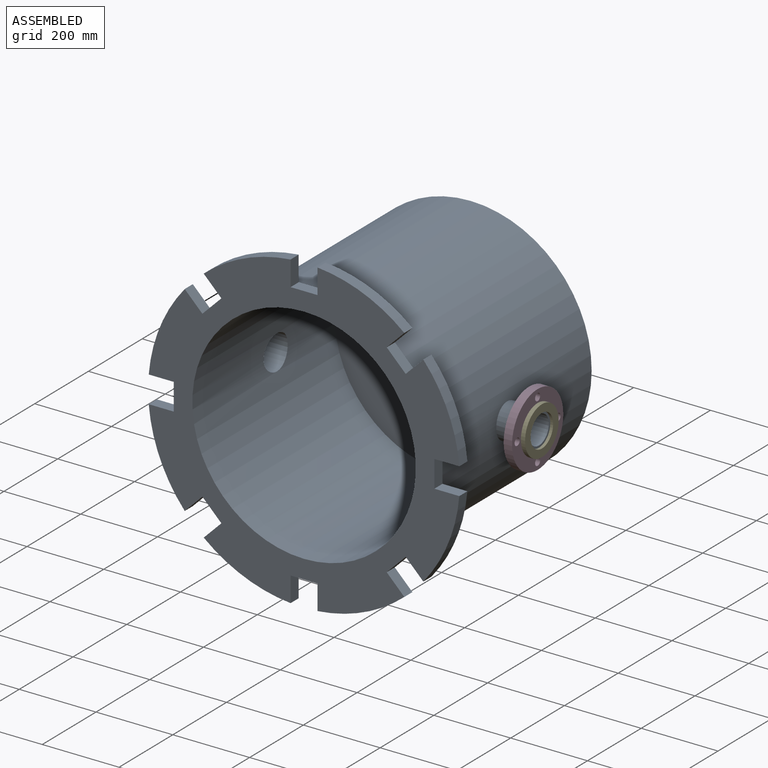
[diagram: assembled view]
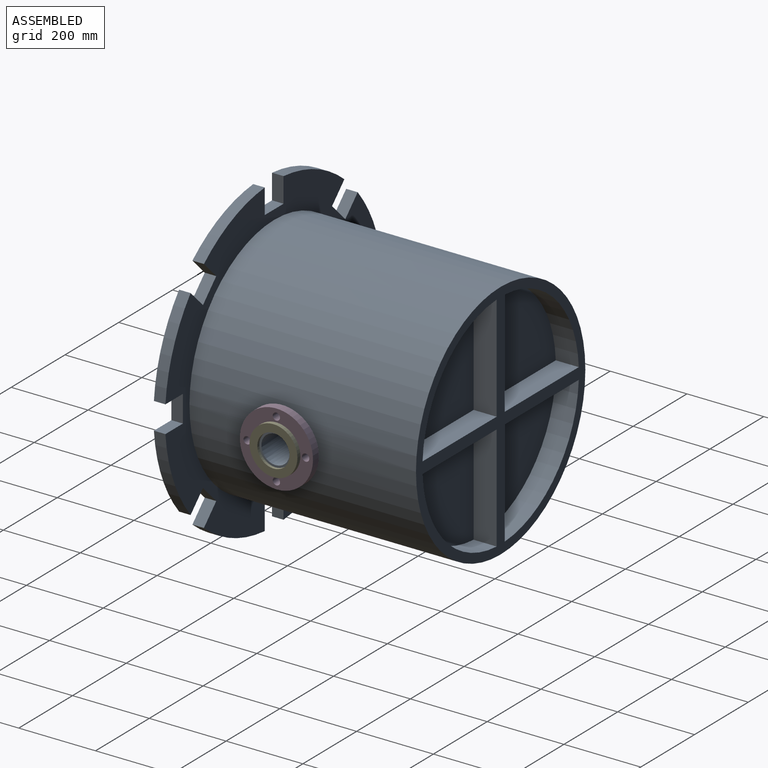
[diagram: assembled view, second angle]
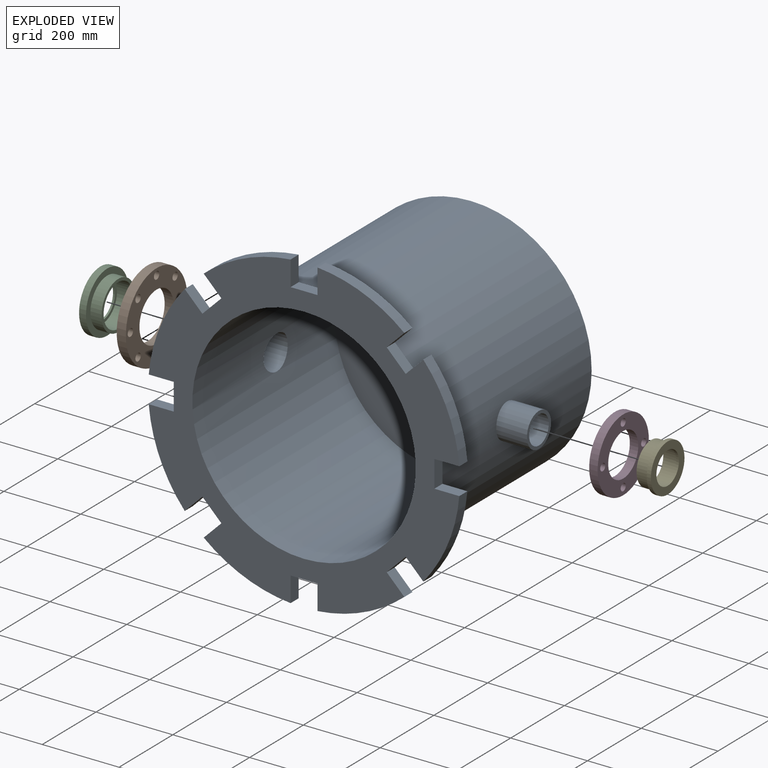
[diagram: exploded view]
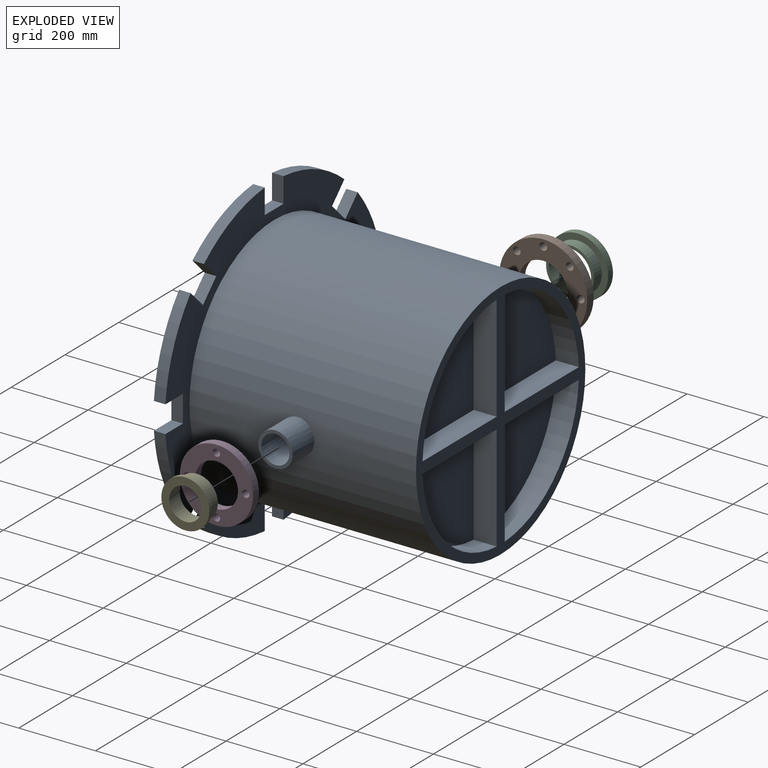
[diagram: exploded view, second angle]
ASSEMBLY  parts=5 mates=8
PART A: 60 faces, bbox 819.5x620x809 mm
  f0: cylinder r=291mm len=582mm, axis (0,-1,0), area 958417.8mm2, adj f9,f13,f56,f59
  f1: cylinder r=315mm len=630mm, axis (0,-1,0), area 1151808mm2, adj f10,f11,f55,f58
  f2: cylinder r=406mm len=226.27mm, axis (0,1,0), area 7463.5mm2, adj f9,f10,f48,f51
  f3: cylinder r=406mm len=226.27mm, axis (0,1,0), area 7463.5mm2, adj f9,f10,f45,f49
  f4: cylinder r=406mm len=226.27mm, axis (0,1,0), area 7463.5mm2, adj f9,f10,f42,f46
  f5: cylinder r=406mm len=226.27mm, axis (0,1,0), area 7463.5mm2, adj f9,f10,f39,f43
  f6: cylinder r=406mm len=226.27mm, axis (0,1,0), area 7463.5mm2, adj f9,f10,f36,f40
  f7: cylinder r=406mm len=226.27mm, axis (0,1,0), area 7463.5mm2, adj f9,f10,f33,f37
  f8: cylinder r=406mm len=226.27mm, axis (0,1,0), area 7463.5mm2, adj f9,f10,f30,f34
  f9: plane 808.98x808.98mm, normal (0,-1,0), area 214849.9mm2, adj f0,f2,f3,f4,f5,f6,f7,f8
  f10: plane 808.98x808.98mm, normal (0,1,0), area 169158.6mm2, adj f1,f2,f3,f4,f5,f6,f7,f8
  f11: plane 630x630mm, normal (0,1,0), area 79695.9mm2, adj f1,f14,f15,f16,f18,f19,f20,f22
  f12: cylinder r=406mm len=226.27mm, axis (0,1,0), area 7463.5mm2, adj f9,f10,f31,f53
  f13: plane 582x582mm, normal (0,-1,0), area 266033.2mm2, adj f0
  f14: plane 275.61x60mm, normal (1,0,0), area 16536.8mm2, adj f11,f15,f16,f17
  f15: cylinder r=291mm len=275.61mm, axis (0,1,0), area 25625.3mm2, adj f11,f14,f16,f17
  f16: plane 275.61x60mm, normal (0,0,1), area 16536.8mm2, adj f11,f14,f15,f17
  f17: plane 275.61x275.61mm, normal (0,1,0), area 58007.2mm2, adj f14,f15,f16
  f18: cylinder r=291mm len=275.61mm, axis (0,1,0), area 25625.3mm2, adj f11,f19,f20,f21
  f19: plane 275.61x60mm, normal (-1,0,0), area 16536.8mm2, adj f11,f18,f20,f21
  f20: plane 275.61x60mm, normal (0,0,1), area 16536.8mm2, adj f11,f18,f19,f21
  f21: plane 275.61x275.61mm, normal (0,1,0), area 58007.2mm2, adj f18,f19,f20
  f22: plane 275.61x60mm, normal (-1,0,0), area 16536.8mm2, adj f11,f23,f24,f25
  f23: cylinder r=291mm len=275.61mm, axis (0,1,0), area 25625.3mm2, adj f11,f22,f24,f25
  f24: plane 275.61x60mm, normal (0,0,-1), area 16536.8mm2, adj f11,f22,f23,f25
  f25: plane 275.61x275.61mm, normal (0,1,0), area 58007.2mm2, adj f22,f23,f24
  f26: plane 275.61x60mm, normal (0,0,-1), area 16536.8mm2, adj f11,f27,f28,f29
  f27: cylinder r=291mm len=275.61mm, axis (0,1,0), area 25625.3mm2, adj f11,f26,f28,f29
  f28: plane 275.61x60mm, normal (1,0,0), area 16536.8mm2, adj f11,f26,f27,f29
  f29: plane 275.61x275.61mm, normal (0,1,0), area 58007.2mm2, adj f26,f27,f28
  f30: plane 45.96x45.96mm, normal (-0.71,0,0.71), area 1950mm2, adj f8,f9,f10,f32
  f31: plane 45.96x45.96mm, normal (0.71,0,-0.71), area 1950mm2, adj f9,f10,f12,f32
  f32: plane 49.5x49.5mm, normal (0.71,0,0.71), area 2100mm2, adj f9,f10,f30,f31
  f33: plane 65x30mm, normal (0,0,1), area 1950mm2, adj f7,f9,f10,f35
  f34: plane 65x30mm, normal (0,0,-1), area 1950mm2, adj f8,f9,f10,f35
  f35: plane 70x30mm, normal (1,0,0), area 2100mm2, adj f9,f10,f33,f34
  f36: plane 45.96x45.96mm, normal (0.71,0,0.71), area 1950mm2, adj f6,f9,f10,f38
  f37: plane 45.96x45.96mm, normal (-0.71,0,-0.71), area 1950mm2, adj f7,f9,f10,f38
  f38: plane 49.5x49.5mm, normal (0.71,0,-0.71), area 2100mm2, adj f9,f10,f36,f37
  f39: plane 65x30mm, normal (1,0,0), area 1950mm2, adj f5,f9,f10,f41
  f40: plane 65x30mm, normal (-1,0,0), area 1950mm2, adj f6,f9,f10,f41
  f41: plane 70x30mm, normal (0,0,-1), area 2100mm2, adj f9,f10,f39,f40
  f42: plane 45.96x45.96mm, normal (0.71,0,-0.71), area 1950mm2, adj f4,f9,f10,f44
  f43: plane 45.96x45.96mm, normal (-0.71,0,0.71), area 1950mm2, adj f5,f9,f10,f44
  f44: plane 49.5x49.5mm, normal (-0.71,0,-0.71), area 2100mm2, adj f9,f10,f42,f43
  f45: plane 65x30mm, normal (0,0,-1), area 1950mm2, adj f3,f9,f10,f47
  f46: plane 65x30mm, normal (0,0,1), area 1950mm2, adj f4,f9,f10,f47
  f47: plane 70x30mm, normal (-1,0,0), area 2100mm2, adj f9,f10,f45,f46
  f48: plane 45.96x45.96mm, normal (-0.71,0,-0.71), area 1950mm2, adj f2,f9,f10,f50
  f49: plane 45.96x45.96mm, normal (0.71,0,0.71), area 1950mm2, adj f3,f9,f10,f50
  f50: plane 49.5x49.5mm, normal (-0.71,0,0.71), area 2100mm2, adj f9,f10,f48,f49
  f51: plane 65x30mm, normal (1,0,0), area 1950mm2, adj f2,f9,f10,f52
  f52: plane 70x30mm, normal (0,0,1), area 2100mm2, adj f9,f10,f51,f53
  f53: plane 65x30mm, normal (-1,0,0), area 1950mm2, adj f9,f10,f12,f52
  f54: plane 90x90mm, normal (1,0,0), area 2107.3mm2, adj f55,f56
  f55: cylinder r=45mm len=90mm, axis (-1,0,0), area 23076.4mm2, adj f1,f54
  f56: cylinder r=36.8mm len=106.34mm, axis (-1,0,0), area 24317.3mm2, adj f0,f54
  f57: plane 110x110mm, normal (-1,0,0), area 3141.6mm2, adj f58,f59
  f58: cylinder r=55mm len=110mm, axis (1,0,0), area 35391.9mm2, adj f1,f57
  f59: cylinder r=45mm len=127.5mm, axis (1,0,0), area 35554.5mm2, adj f0,f57
PART B: 12 faces, bbox 23.9x229x229 mm
  f0: cylinder r=64mm len=128mm, axis (-1,0,0), area 9610.8mm2, adj f10,f11
  f1: cylinder r=10mm len=23.9mm, axis (-1,0,0), area 1501.7mm2, adj f10,f11
  f2: cylinder r=10mm len=23.9mm, axis (-1,0,0), area 1501.7mm2, adj f10,f11
  f3: cylinder r=10mm len=23.9mm, axis (-1,0,0), area 1501.7mm2, adj f10,f11
  f4: cylinder r=10mm len=23.9mm, axis (-1,0,0), area 1501.7mm2, adj f10,f11
  f5: cylinder r=10mm len=23.9mm, axis (-1,0,0), area 1501.7mm2, adj f10,f11
  f6: cylinder r=10mm len=23.9mm, axis (-1,0,0), area 1501.7mm2, adj f10,f11
  f7: cylinder r=10mm len=23.9mm, axis (-1,0,0), area 1501.7mm2, adj f10,f11
  f8: cylinder r=10mm len=23.9mm, axis (-1,0,0), area 1501.7mm2, adj f10,f11
  f9: cylinder r=114.5mm len=229mm, axis (-1,0,0), area 17194.3mm2, adj f10,f11
  f10: plane 229x229mm, normal (1,0,0), area 25805.8mm2, adj f0,f1,f2,f3,f4,f5,f6,f7
  f11: plane 229x229mm, normal (-1,0,0), area 25805.8mm2, adj f0,f1,f2,f3,f4,f5,f6,f7
PART C: 8 faces, bbox 47x158x158 mm
  f0: cylinder r=47.5mm len=95mm, axis (1,0,0), area 1492.3mm2, adj f2,f6
  f1: cylinder r=79mm len=158mm, axis (-1,0,0), area 8934.7mm2, adj f2,f3
  f2: plane 158x158mm, normal (1,0,0), area 12518.5mm2, adj f0,f1
  f3: plane 158x158mm, normal (-1,0,0), area 7334.8mm2, adj f1,f4
  f4: cylinder r=62.5mm len=125mm, axis (1,0,0), area 11388.3mm2, adj f3,f5
  f5: plane 125x125mm, normal (-1,0,0), area 2768.5mm2, adj f4,f7
  f6: plane 110x110mm, normal (-1,0,0), area 2415.1mm2, adj f0,f7
  f7: cylinder r=55mm len=110mm, axis (-1,0,0), area 14514.2mm2, adj f5,f6
PART D: 8 faces, bbox 22x190.5x190.5 mm
  f0: cylinder r=56mm len=112mm, axis (-1,0,0), area 7740.9mm2, adj f6,f7
  f1: cylinder r=9.53mm len=22mm, axis (-1,0,0), area 1316.6mm2, adj f6,f7
  f2: cylinder r=9.53mm len=22mm, axis (-1,0,0), area 1316.6mm2, adj f6,f7
  f3: cylinder r=9.53mm len=22mm, axis (-1,0,0), area 1316.6mm2, adj f6,f7
  f4: cylinder r=9.53mm len=22mm, axis (-1,0,0), area 1316.6mm2, adj f6,f7
  f5: cylinder r=95.25mm len=190.5mm, axis (-1,0,0), area 13166.4mm2, adj f6,f7
  f6: plane 190.5x190.5mm, normal (1,0,0), area 17510.2mm2, adj f0,f1,f2,f3,f4,f5
  f7: plane 190.5x190.5mm, normal (-1,0,0), area 17510.2mm2, adj f0,f1,f2,f3,f4,f5
PART E: 8 faces, bbox 43x125x125 mm
  f0: cylinder r=62.5mm len=125mm, axis (-1,0,0), area 4319.7mm2, adj f1,f2
  f1: plane 125x125mm, normal (1,0,0), area 6730.1mm2, adj f0,f7
  f2: plane 125x125mm, normal (-1,0,0), area 2940.5mm2, adj f0,f3
  f3: cylinder r=54.5mm len=109mm, axis (1,0,0), area 10957.9mm2, adj f2,f4
  f4: plane 109x109mm, normal (-1,0,0), area 2969.6mm2, adj f3,f5
  f5: cylinder r=45mm len=90mm, axis (-1,0,0), area 10037.4mm2, adj f4,f6
  f6: plane 90x90mm, normal (-1,0,0), area 820mm2, adj f5,f7
  f7: cylinder r=42mm len=84mm, axis (1,0,0), area 1979.2mm2, adj f1,f6
PLACE A t=(-116.01,-116.08,98.48)mm fixed
PLACE B rot(axis=(1,0,0),0deg) t=(-518.01,163.92,98.48)mm
PLACE C rot(axis=(0,1,0),180deg) t=(-518.01,163.92,98.48)mm
PLACE D t=(253.49,163.92,98.48)mm
PLACE E t=(275.49,163.92,98.48)mm
MATE cylindrical C.f7 <-> A.f58  axis (1,0,0) through (-489.01,163.92,98.48)mm
MATE cylindrical E.f5 <-> A.f55  axis (-1,0,0) through (278.99,163.92,98.48)mm
MATE cylindrical B.f0 <-> C.f4  axis (-1,0,0) through (-518.01,163.92,98.48)mm
MATE fastened B.f9 <-> C.f7  axis (-1,0,0) through (-518.01,163.92,98.48)mm
MATE fastened E.f0 <-> A.f55  axis (-1,0,0) through (278.99,163.92,98.48)mm
MATE fastened E.f0 <-> D.f5  axis (-1,0,0) through (275.49,163.92,98.48)mm
MATE fastened C.f7 <-> A.f58  axis (1,0,0) through (-531.01,163.92,98.48)mm
MATE cylindrical D.f0 <-> E.f3  axis (-1,0,0) through (275.49,163.92,98.48)mm
